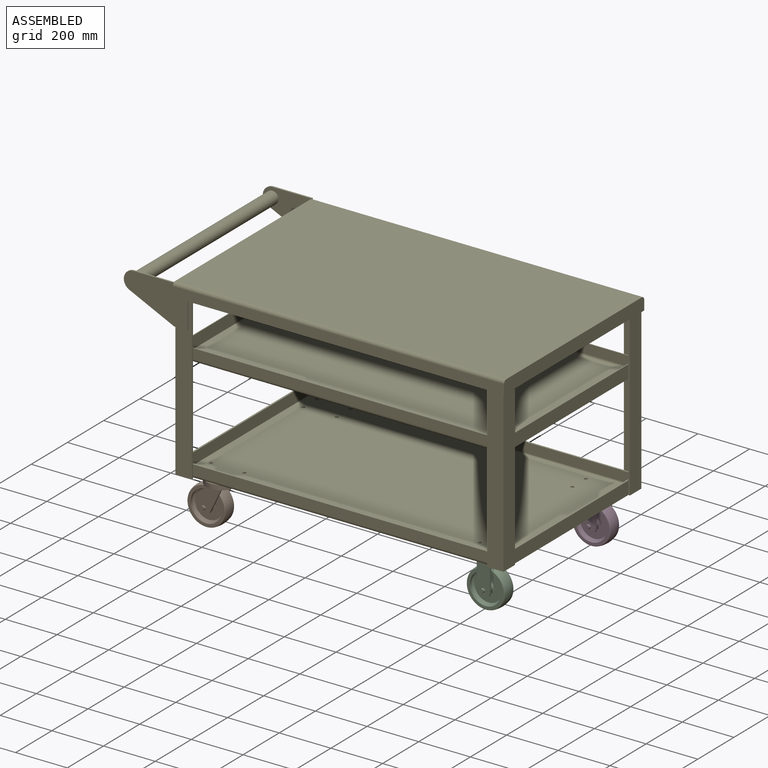
[diagram: assembled view]
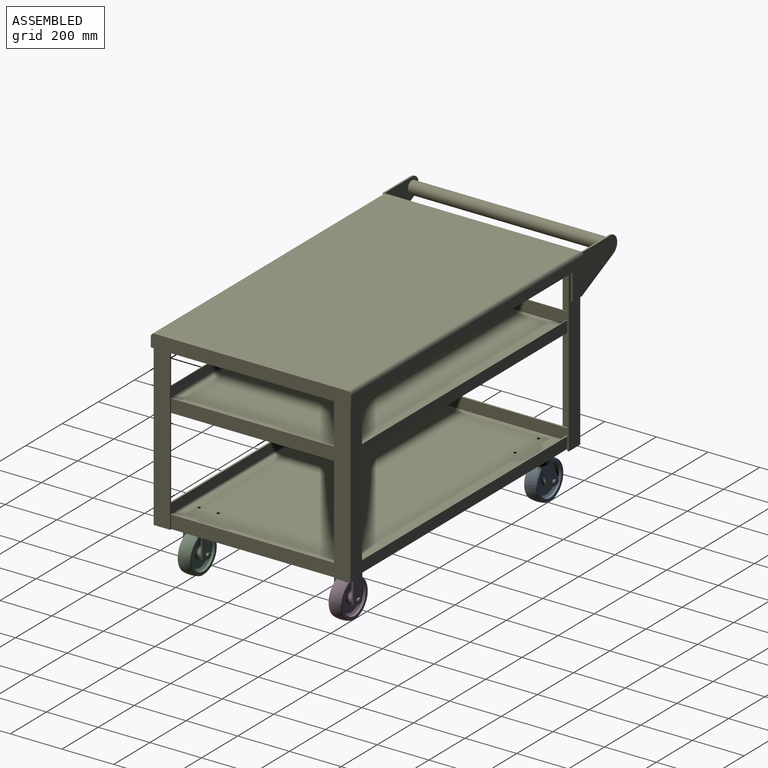
[diagram: assembled view, second angle]
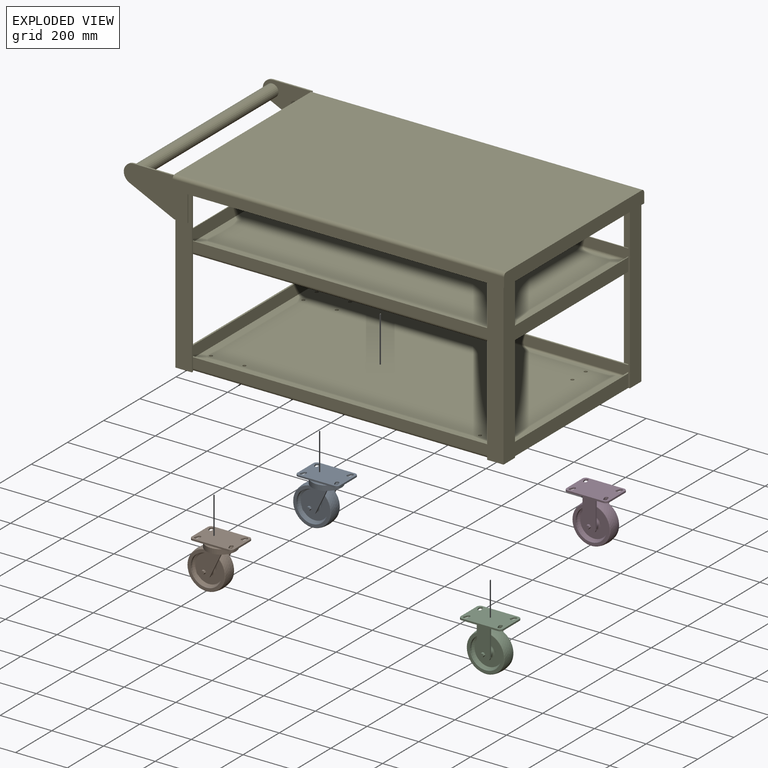
[diagram: exploded view]
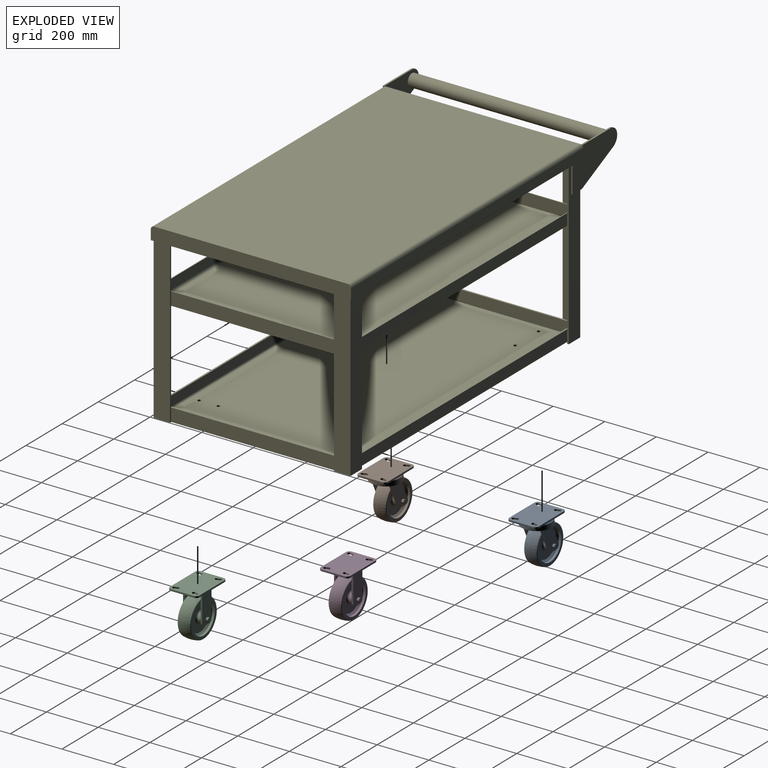
[diagram: exploded view, second angle]
ASSEMBLY  parts=5 mates=4
PART A: 97 faces, bbox 201.9x114.3x193.9 mm
  f0: cylinder r=6.32mm len=44.32mm, axis (0,1,0), area 1761.3mm2, adj f8,f27
  f1: plane 7.62x6.35mm, normal (0.87,0,0.5), area 55.9mm2, adj f2,f6,f7,f8
  f2: plane 7.62x7.33mm, normal (0,0,1), area 55.9mm2, adj f1,f3,f7,f8
  f3: plane 7.62x6.35mm, normal (-0.87,0,0.5), area 55.9mm2, adj f2,f4,f7,f8
  f4: plane 7.62x6.35mm, normal (-0.87,0,-0.5), area 55.9mm2, adj f3,f5,f7,f8
  f5: plane 7.62x7.33mm, normal (0,0,-1), area 55.9mm2, adj f4,f6,f7,f8
  f6: plane 7.62x6.35mm, normal (0.87,0,-0.5), area 55.9mm2, adj f1,f5,f7,f8
  f7: plane 14.66x12.7mm, normal (0,1,0), area 139.7mm2, adj f1,f2,f3,f4,f5,f6
  f8: plane 14.66x12.7mm, normal (0,-1,0), area 14mm2, adj f0,f1,f2,f3,f4,f5,f6
  f9: plane 28.18x6.35mm, normal (0,0,-1), area 179mm2, adj f12,f13,f14,f15
  f10: plane 94.4x45.39mm, normal (0.9,0,-0.43), area 665.1mm2, adj f12,f13,f14,f16
  f11: plane 83.4x40.09mm, normal (-0.9,0,0.43), area 587.6mm2, adj f12,f13,f15,f16
  f12: plane 101.6x97.72mm, normal (0,-1,0), area 5482.5mm2, adj f9,f10,f11,f14,f15,f16,f56,f57
  f13: plane 101.6x97.72mm, normal (0,1,0), area 5482.5mm2, adj f9,f10,f11,f14,f15,f16,f49,f50
  f14: cylinder r=12.7mm len=11.45mm, axis (0,1,0), area 90.5mm2, adj f9,f10,f12,f13
  f15: cylinder r=12.7mm len=18.2mm, axis (0,1,0), area 162.8mm2, adj f9,f11,f12,f13
  f16: plane 114.3x114.3mm, normal (0,0,-1), area 9545mm2, adj f10,f11,f12,f13,f17,f20,f21,f22
  f17: cylinder r=57.15mm len=114.3mm, axis (0,0,-1), area 6749.3mm2, adj f16,f18
  f18: cone r=57.15mm half-angle=45deg, axis (0,0,-1), area 2465.1mm2, adj f17,f88
  f19: plane 28.18x6.35mm, normal (0,0,-1), area 179mm2, adj f22,f23,f24,f25
  f20: plane 94.4x45.39mm, normal (0.9,0,-0.43), area 665.1mm2, adj f16,f22,f23,f24
  f21: plane 83.4x40.09mm, normal (-0.9,0,0.43), area 587.6mm2, adj f16,f22,f23,f25
  f22: plane 101.6x97.72mm, normal (0,1,0), area 5495.5mm2, adj f16,f19,f20,f21,f24,f25,f26
  f23: plane 101.6x97.72mm, normal (0,-1,0), area 5495.5mm2, adj f16,f19,f20,f21,f24,f25,f26
  f24: cylinder r=12.7mm len=11.45mm, axis (0,-1,0), area 90.5mm2, adj f19,f20,f22,f23
  f25: cylinder r=12.7mm len=18.2mm, axis (0,-1,0), area 162.8mm2, adj f19,f21,f22,f23
  f26: cylinder r=6.35mm len=12.7mm, axis (0,-1,0), area 253.4mm2, adj f22,f23
  f27: plane 12.7x12.7mm, normal (0,1,0), area 1mm2, adj f0,f37
  f28: cone r=19.05mm half-angle=45deg, axis (0,-1,0), area 247.7mm2, adj f35,f36
  f29: torus R=71.03mm, axis (0,-1,0), area 1552.2mm2, adj f30,f48
  f30: plane 142.06x142.06mm, normal (0,1,0), area 4417.4mm2, adj f29,f31
  f31: cylinder r=60.32mm len=120.65mm, axis (0,-1,0), area 3524.8mm2, adj f30,f32
  f32: cone r=53.75mm half-angle=45deg, axis (0,1,0), area 3332.7mm2, adj f31,f33
  f33: plane 107.5x107.5mm, normal (0,1,0), area 7049.2mm2, adj f32,f34
  f34: torus R=25.4mm, axis (0,-1,0), area 1338.5mm2, adj f33,f35
  f35: cylinder r=19.05mm len=38.1mm, axis (0,-1,0), area 1527.7mm2, adj f28,f34
  f36: plane 35.05x35.05mm, normal (0,1,0), area 838.3mm2, adj f28,f37
  f37: cylinder r=6.35mm len=35.94mm, axis (0,1,0), area 1434mm2, adj f27,f36
  f38: cone r=19.05mm half-angle=45deg, axis (0,1,0), area 247.7mm2, adj f46,f47
  f39: torus R=71.03mm, axis (0,1,0), area 1552.2mm2, adj f40,f41
  f40: revolved ~152.4x152.4mm, area 11186.1mm2, adj f39,f48
  f41: plane 142.06x142.06mm, normal (0,-1,0), area 4417.4mm2, adj f39,f42
  f42: cylinder r=60.32mm len=120.65mm, axis (0,1,0), area 3524.8mm2, adj f41,f43
  f43: cone r=53.75mm half-angle=45deg, axis (0,-1,0), area 3332.7mm2, adj f42,f44
  f44: plane 107.5x107.5mm, normal (0,-1,0), area 7049.2mm2, adj f43,f45
  f45: torus R=25.4mm, axis (0,1,0), area 1338.5mm2, adj f44,f46
  f46: cylinder r=19.05mm len=38.1mm, axis (0,1,0), area 1527.7mm2, adj f38,f45
  f47: plane 35.05x35.05mm, normal (0,-1,0), area 825.3mm2, adj f38,f49,f50,f51,f52,f53,f54
  f48: revolved ~152.4x152.4mm, area 22372.2mm2, adj f29,f40
  f49: plane 6.35x3.67mm, normal (0.87,0,-0.5), area 5.6mm2, adj f13,f47,f50,f54
  f50: plane 7.33x0.76mm, normal (0,0,-1), area 5.6mm2, adj f13,f47,f49,f51
  f51: plane 6.35x3.67mm, normal (-0.87,0,-0.5), area 5.6mm2, adj f13,f47,f50,f52
  f52: plane 6.35x3.67mm, normal (-0.87,0,0.5), area 5.6mm2, adj f13,f47,f51,f53
  f53: plane 7.33x0.76mm, normal (0,0,1), area 5.6mm2, adj f13,f47,f52,f54
  f54: plane 6.35x3.67mm, normal (0.87,0,0.5), area 5.6mm2, adj f13,f47,f49,f53
  f55: plane 14.66x12.7mm, normal (0,-1,0), area 139.7mm2, adj f56,f57,f58,f59,f60,f61
  f56: plane 8.89x6.35mm, normal (0.87,0,-0.5), area 65.2mm2, adj f12,f55,f57,f61
  f57: plane 8.89x7.33mm, normal (0,0,-1), area 65.2mm2, adj f12,f55,f56,f58
  f58: plane 8.89x6.35mm, normal (-0.87,0,-0.5), area 65.2mm2, adj f12,f55,f57,f59
  f59: plane 8.89x6.35mm, normal (-0.87,0,0.5), area 65.2mm2, adj f12,f55,f58,f60
  f60: plane 8.89x7.33mm, normal (0,0,1), area 65.2mm2, adj f12,f55,f59,f61
  f61: plane 8.89x6.35mm, normal (0.87,0,0.5), area 65.2mm2, adj f12,f55,f56,f60
  f62: plane 165.1x114.3mm, normal (0,0,1), area 17536.1mm2, adj f63,f64,f65,f66,f67,f68,f69,f70
  f63: plane 11.91x6.35mm, normal (0.95,0.32,0), area 79.7mm2, adj f62,f64,f66,f87
  f64: cylinder r=6.55mm len=12.76mm, axis (0,0,1), area 130.6mm2, adj f62,f63,f65,f87
  f65: plane 11.91x6.35mm, normal (-0.95,-0.32,0), area 79.7mm2, adj f62,f64,f66,f87
  f66: cylinder r=6.55mm len=12.76mm, axis (0,0,1), area 130.6mm2, adj f62,f63,f65,f87
  f67: plane 11.91x6.35mm, normal (-0.95,0.32,0), area 79.7mm2, adj f62,f68,f70,f87
  f68: cylinder r=6.55mm len=12.76mm, axis (0,0,1), area 130.6mm2, adj f62,f67,f69,f87
  f69: plane 11.91x6.35mm, normal (0.95,-0.32,0), area 79.7mm2, adj f62,f68,f70,f87
  f70: cylinder r=6.55mm len=12.76mm, axis (0,0,1), area 130.6mm2, adj f62,f67,f69,f87
  f71: plane 11.91x6.35mm, normal (-0.95,0.32,0), area 79.7mm2, adj f62,f72,f74,f87
  f72: cylinder r=6.55mm len=12.76mm, axis (0,0,1), area 130.6mm2, adj f62,f71,f73,f87
  f73: plane 11.91x6.35mm, normal (0.95,-0.32,0), area 79.7mm2, adj f62,f72,f74,f87
  f74: cylinder r=6.55mm len=12.76mm, axis (0,0,1), area 130.6mm2, adj f62,f71,f73,f87
  f75: plane 11.91x6.35mm, normal (0.95,0.32,0), area 79.7mm2, adj f62,f76,f78,f87
  f76: cylinder r=6.55mm len=12.76mm, axis (0,0,1), area 130.6mm2, adj f62,f75,f77,f87
  f77: plane 11.91x6.35mm, normal (-0.95,-0.32,0), area 79.7mm2, adj f62,f76,f78,f87
  f78: cylinder r=6.55mm len=12.76mm, axis (0,0,1), area 130.6mm2, adj f62,f75,f77,f87
  f79: cylinder r=12.7mm len=12.7mm, axis (0,0,1), area 126.7mm2, adj f62,f80,f86,f87
  f80: plane 139.7x6.35mm, normal (0,-1,0), area 887.1mm2, adj f62,f79,f81,f87
  f81: cylinder r=12.7mm len=12.7mm, axis (0,0,-1), area 126.7mm2, adj f62,f80,f82,f87
  f82: plane 88.9x6.35mm, normal (1,0,0), area 564.5mm2, adj f62,f81,f83,f87
  f83: cylinder r=12.7mm len=12.7mm, axis (0,0,-1), area 126.7mm2, adj f62,f82,f84,f87
  f84: plane 139.7x6.35mm, normal (0,1,0), area 887.1mm2, adj f62,f83,f85,f87
  f85: cylinder r=12.7mm len=12.7mm, axis (0,0,1), area 126.7mm2, adj f62,f84,f86,f87
  f86: plane 88.9x6.35mm, normal (-1,0,0), area 564.5mm2, adj f62,f79,f85,f87
  f87: plane 165.1x114.3mm, normal (0,0,-1), area 9018.4mm2, adj f63,f64,f65,f66,f67,f68,f69,f70
  f88: cylinder r=52.07mm len=104.14mm, axis (0,0,-1), area 498.6mm2, adj f18,f87
  f89: plane 76.2x76.2mm, normal (0,0,1), area 1393.4mm2, adj f91,f96
  f90: plane 15.24x15.24mm, normal (0,0,1), area 182.4mm2, adj f94
  f91: cylinder r=31.75mm len=63.5mm, axis (0,0,1), area 3547mm2, adj f89,f93
  f92: cylinder r=12.7mm len=25.4mm, axis (0,0,1), area 1013.4mm2, adj f93,f94
  f93: plane 63.5x63.5mm, normal (0,0,1), area 2660.2mm2, adj f91,f92
  f94: cone r=12.7mm half-angle=45deg, axis (0,0,-1), area 458.6mm2, adj f90,f92
  f95: plane 76.2x76.2mm, normal (0,0,-1), area 4560.4mm2, adj f96
  f96: cylinder r=38.1mm len=76.2mm, axis (0,0,-1), area 4560.4mm2, adj f89,f95
PART B: same geometry as A
PART C: 85 faces, bbox 165.1x114.3x193.9 mm
  f0: cylinder r=6.32mm len=59.31mm, axis (0,1,0), area 2356.9mm2, adj f8,f30
  f1: plane 7.62x6.35mm, normal (0.87,0,0.5), area 55.9mm2, adj f2,f6,f7,f8
  f2: plane 7.62x7.33mm, normal (0,0,1), area 55.9mm2, adj f1,f3,f7,f8
  f3: plane 7.62x6.35mm, normal (-0.87,0,0.5), area 55.9mm2, adj f2,f4,f7,f8
  f4: plane 7.62x6.35mm, normal (-0.87,0,-0.5), area 55.9mm2, adj f3,f5,f7,f8
  f5: plane 7.62x7.33mm, normal (0,0,-1), area 55.9mm2, adj f4,f6,f7,f8
  f6: plane 7.62x6.35mm, normal (0.87,0,-0.5), area 55.9mm2, adj f1,f5,f7,f8
  f7: plane 14.66x12.7mm, normal (0,1,0), area 139.7mm2, adj f1,f2,f3,f4,f5,f6
  f8: plane 14.66x12.7mm, normal (0,-1,0), area 14mm2, adj f0,f1,f2,f3,f4,f5,f6
  f9: revolved ~152.4x152.4mm, area 22372.2mm2, adj f17,f28
  f10: plane 35.05x35.05mm, normal (0,-1,0), area 825.3mm2, adj f19,f31,f32,f33,f34,f35,f36
  f11: cylinder r=19.05mm len=38.1mm, axis (0,1,0), area 1527.7mm2, adj f12,f19
  f12: torus R=25.4mm, axis (0,1,0), area 1338.5mm2, adj f11,f13
  f13: plane 107.5x107.5mm, normal (0,-1,0), area 7049.2mm2, adj f12,f14
  f14: cone r=53.75mm half-angle=45deg, axis (0,-1,0), area 3332.7mm2, adj f13,f15
  f15: cylinder r=60.32mm len=120.65mm, axis (0,1,0), area 3524.8mm2, adj f14,f16
  f16: plane 142.06x142.06mm, normal (0,-1,0), area 4417.4mm2, adj f15,f18
  f17: revolved ~152.4x152.4mm, area 11186.1mm2, adj f9,f18
  f18: torus R=71.03mm, axis (0,1,0), area 1552.2mm2, adj f16,f17
  f19: cone r=19.05mm half-angle=45deg, axis (0,1,0), area 247.7mm2, adj f10,f11
  f20: cylinder r=6.35mm len=50.93mm, axis (0,1,0), area 2031.9mm2, adj f21,f30
  f21: plane 35.05x35.05mm, normal (0,1,0), area 838.3mm2, adj f20,f29
  f22: cylinder r=19.05mm len=38.1mm, axis (0,-1,0), area 1527.7mm2, adj f23,f29
  f23: torus R=25.4mm, axis (0,-1,0), area 1338.5mm2, adj f22,f24
  f24: plane 107.5x107.5mm, normal (0,1,0), area 7049.2mm2, adj f23,f25
  f25: cone r=53.75mm half-angle=45deg, axis (0,1,0), area 3332.7mm2, adj f24,f26
  f26: cylinder r=60.32mm len=120.65mm, axis (0,-1,0), area 3524.8mm2, adj f25,f27
  f27: plane 142.06x142.06mm, normal (0,1,0), area 4417.4mm2, adj f26,f28
  f28: torus R=71.03mm, axis (0,-1,0), area 1552.2mm2, adj f9,f27
  f29: cone r=19.05mm half-angle=45deg, axis (0,-1,0), area 247.7mm2, adj f21,f22
  f30: plane 12.7x12.7mm, normal (0,1,0), area 1mm2, adj f0,f20
  f31: plane 6.35x3.67mm, normal (0.87,0,-0.5), area 5.6mm2, adj f10,f32,f36,f41
  f32: plane 7.33x0.76mm, normal (0,0,-1), area 5.6mm2, adj f10,f31,f33,f41
  f33: plane 6.35x3.67mm, normal (-0.87,0,-0.5), area 5.6mm2, adj f10,f32,f34,f41
  f34: plane 6.35x3.67mm, normal (-0.87,0,0.5), area 5.6mm2, adj f10,f33,f35,f41
  f35: plane 7.33x0.76mm, normal (0,0,1), area 5.6mm2, adj f10,f34,f36,f41
  f36: plane 6.35x3.67mm, normal (0.87,0,0.5), area 5.6mm2, adj f10,f31,f35,f41
  f37: plane 25.4x6.35mm, normal (0,0,-1), area 161.3mm2, adj f40,f41,f42,f43
  f38: plane 114.3x6.35mm, normal (1,0,0), area 725.8mm2, adj f40,f41,f42,f44
  f39: plane 114.3x6.35mm, normal (-1,0,0), area 725.8mm2, adj f40,f41,f43,f44
  f40: plane 127x50.8mm, normal (0,-1,0), area 6242.7mm2, adj f37,f38,f39,f42,f43,f44,f79,f80
  f41: plane 127x50.8mm, normal (0,1,0), area 6242.7mm2, adj f31,f32,f33,f34,f35,f36,f37,f38
  f42: cylinder r=12.7mm len=12.7mm, axis (0,1,0), area 126.7mm2, adj f37,f38,f40,f41
  f43: cylinder r=12.7mm len=12.7mm, axis (0,1,0), area 126.7mm2, adj f37,f39,f40,f41
  f44: plane 165.1x114.3mm, normal (0,0,-1), area 16891mm2, adj f38,f39,f40,f41,f45,f46,f48,f49
  f45: plane 88.9x6.35mm, normal (-1,0,0), area 564.5mm2, adj f44,f47,f58,f76
  f46: plane 88.9x6.35mm, normal (1,0,0), area 564.5mm2, adj f44,f47,f57,f75
  f47: plane 165.1x114.3mm, normal (0,0,1), area 17536.1mm2, adj f45,f46,f48,f49,f50,f51,f52,f53
  f48: plane 139.7x6.35mm, normal (0,-1,0), area 887.1mm2, adj f44,f47,f57,f58
  f49: cylinder r=6.55mm len=12.76mm, axis (0,0,1), area 130.6mm2, adj f44,f47,f50,f52
  f50: plane 11.91x6.35mm, normal (-0.95,0.32,0), area 79.7mm2, adj f44,f47,f49,f51
  f51: cylinder r=6.55mm len=12.76mm, axis (0,0,1), area 130.6mm2, adj f44,f47,f50,f52
  f52: plane 11.91x6.35mm, normal (0.95,-0.32,0), area 79.7mm2, adj f44,f47,f49,f51
  f53: cylinder r=6.55mm len=12.76mm, axis (0,0,1), area 130.6mm2, adj f44,f47,f54,f56
  f54: plane 11.91x6.35mm, normal (0.95,0.32,0), area 79.7mm2, adj f44,f47,f53,f55
  f55: cylinder r=6.55mm len=12.76mm, axis (0,0,1), area 130.6mm2, adj f44,f47,f54,f56
  f56: plane 11.91x6.35mm, normal (-0.95,-0.32,0), area 79.7mm2, adj f44,f47,f53,f55
  f57: cylinder r=12.7mm len=12.7mm, axis (0,0,-1), area 126.7mm2, adj f44,f46,f47,f48
  f58: cylinder r=12.7mm len=12.7mm, axis (0,0,1), area 126.7mm2, adj f44,f45,f47,f48
  f59: plane 25.4x6.35mm, normal (0,0,-1), area 161.3mm2, adj f62,f63,f64,f65
  f60: plane 114.3x6.35mm, normal (1,0,0), area 725.8mm2, adj f44,f62,f63,f64
  f61: plane 114.3x6.35mm, normal (-1,0,0), area 725.8mm2, adj f44,f62,f63,f65
  f62: plane 127x50.8mm, normal (0,1,0), area 6255.7mm2, adj f44,f59,f60,f61,f64,f65,f77
  f63: plane 127x50.8mm, normal (0,-1,0), area 6255.7mm2, adj f44,f59,f60,f61,f64,f65,f77
  f64: cylinder r=12.7mm len=12.7mm, axis (0,-1,0), area 126.7mm2, adj f59,f60,f62,f63
  f65: cylinder r=12.7mm len=12.7mm, axis (0,-1,0), area 126.7mm2, adj f59,f61,f62,f63
  f66: plane 139.7x6.35mm, normal (0,1,0), area 887.1mm2, adj f44,f47,f75,f76
  f67: cylinder r=6.55mm len=12.76mm, axis (0,0,1), area 130.6mm2, adj f44,f47,f68,f70
  f68: plane 11.91x6.35mm, normal (-0.95,-0.32,0), area 79.7mm2, adj f44,f47,f67,f69
  f69: cylinder r=6.55mm len=12.76mm, axis (0,0,1), area 130.6mm2, adj f44,f47,f68,f70
  f70: plane 11.91x6.35mm, normal (0.95,0.32,0), area 79.7mm2, adj f44,f47,f67,f69
  f71: cylinder r=6.55mm len=12.76mm, axis (0,0,1), area 130.6mm2, adj f44,f47,f72,f74
  f72: plane 11.91x6.35mm, normal (0.95,-0.32,0), area 79.7mm2, adj f44,f47,f71,f73
  f73: cylinder r=6.55mm len=12.76mm, axis (0,0,1), area 130.6mm2, adj f44,f47,f72,f74
  f74: plane 11.91x6.35mm, normal (-0.95,0.32,0), area 79.7mm2, adj f44,f47,f71,f73
  f75: cylinder r=12.7mm len=12.7mm, axis (0,0,-1), area 126.7mm2, adj f44,f46,f47,f66
  f76: cylinder r=12.7mm len=12.7mm, axis (0,0,1), area 126.7mm2, adj f44,f45,f47,f66
  f77: cylinder r=6.35mm len=12.7mm, axis (0,-1,0), area 253.4mm2, adj f62,f63
  f78: plane 14.66x12.7mm, normal (0,-1,0), area 139.7mm2, adj f79,f80,f81,f82,f83,f84
  f79: plane 8.89x6.35mm, normal (0.87,0,-0.5), area 65.2mm2, adj f40,f78,f80,f84
  f80: plane 8.89x7.33mm, normal (0,0,-1), area 65.2mm2, adj f40,f78,f79,f81
  f81: plane 8.89x6.35mm, normal (-0.87,0,-0.5), area 65.2mm2, adj f40,f78,f80,f82
  f82: plane 8.89x6.35mm, normal (-0.87,0,0.5), area 65.2mm2, adj f40,f78,f81,f83
  f83: plane 8.89x7.33mm, normal (0,0,1), area 65.2mm2, adj f40,f78,f82,f84
  f84: plane 8.89x6.35mm, normal (0.87,0,0.5), area 65.2mm2, adj f40,f78,f79,f83
PART D: same geometry as C
PART E: 121 faces, bbox 1471.9x774.7x673.1 mm
  f0: plane 1270x762mm, normal (0,0,-1), area 911197.2mm2, adj f31,f32,f34,f35,f42,f43,f46,f48
  f1: plane 1244.6x723.9mm, normal (0,0,1), area 898939.1mm2, adj f38,f39,f40,f41,f105,f106,f107,f108
  f2: plane 1225.55x774.7mm, normal (0,0,-1), area 20403.2mm2, adj f51,f53,f55,f58,f59,f60,f65,f70
  f3: plane 762x50.8mm, normal (-1,0,0), area 38702.6mm2, adj f4,f61,f62,f63,f86,f101
  f4: plane 762x6.35mm, normal (0,0,-1), area 4838.7mm2, adj f3,f52,f64,f81,f86,f101
  f5: plane 1143x38.1mm, normal (0,1,0), area 43548.3mm2, adj f9,f11,f77,f82
  f6: plane 1143x38.1mm, normal (0,-1,0), area 43548.3mm2, adj f9,f12,f66,f71
  f7: plane 635x50.8mm, normal (-1,0,0), area 32258mm2, adj f9,f10,f67,f84
  f8: plane 635x50.8mm, normal (1,0,0), area 32258mm2, adj f9,f10,f73,f80
  f9: plane 1257.3x749.3mm, normal (0,0,1), area 13663.6mm2, adj f5,f6,f7,f8,f13,f14,f15,f17
  f10: plane 1257.3x723.9mm, normal (0,0,-1), area 910159.5mm2, adj f7,f8,f11,f12,f26,f27,f44,f45
  f11: cylinder r=12.7mm len=1257.3mm, axis (1,0,0), area 25082mm2, adj f5,f10,f22,f24,f44,f45
  f12: cylinder r=12.7mm len=1257.3mm, axis (-1,0,0), area 25082mm2, adj f6,f10,f26,f27,f28,f47
  f13: plane 1250.47x38.1mm, normal (0,-1,0), area 47642.8mm2, adj f9,f15,f17,f18
  f14: plane 1250.47x38.1mm, normal (0,1,0), area 47642.8mm2, adj f9,f15,f17,f19
  f15: plane 742.47x47.38mm, normal (1,0,0), area 35143.9mm2, adj f9,f13,f14,f16,f18,f19
  f16: plane 1250.47x723.9mm, normal (0,0,1), area 905213.4mm2, adj f15,f17,f18,f19
  f17: plane 742.47x47.38mm, normal (-1,0,0), area 35143.9mm2, adj f9,f13,f14,f16,f18,f19
  f18: cylinder r=9.28mm len=1250.47mm, axis (1,0,0), area 18235.3mm2, adj f13,f15,f16,f17
  f19: cylinder r=9.28mm len=1250.47mm, axis (-1,0,0), area 18235.3mm2, adj f14,f15,f16,f17
  f20: plane 209.55x57.15mm, normal (-1,0,0), area 11975.8mm2, adj f9,f56,f79,f80
  f21: plane 209.55x57.15mm, normal (1,0,0), area 11975.8mm2, adj f9,f23,f56,f84
  f22: plane 368.3x57.15mm, normal (0,-1,0), area 21048.3mm2, adj f11,f33,f45,f82
  f23: plane 209.55x57.15mm, normal (0,-1,0), area 11975.8mm2, adj f9,f21,f56,f82
  f24: plane 368.3x57.15mm, normal (0,-1,0), area 21048.3mm2, adj f11,f33,f44,f77
  f25: plane 209.55x57.15mm, normal (0,1,0), area 11975.8mm2, adj f9,f56,f66,f69
  f26: plane 368.3x57.15mm, normal (-1,0,0), area 20357.2mm2, adj f10,f12,f28,f33,f73
  f27: plane 368.3x57.15mm, normal (1,0,0), area 20357.2mm2, adj f10,f12,f33,f47,f67
  f28: plane 368.3x57.15mm, normal (0,1,0), area 21048.3mm2, adj f12,f26,f33,f71
  f29: plane 1143x38.1mm, normal (0,1,0), area 43548.3mm2, adj f33,f34,f77,f82
  f30: plane 1143x38.1mm, normal (0,-1,0), area 43548.3mm2, adj f33,f35,f66,f71
  f31: plane 635x50.8mm, normal (-1,0,0), area 32258mm2, adj f0,f33,f67,f84
  f32: plane 635x50.8mm, normal (1,0,0), area 32258mm2, adj f0,f33,f73,f80
  f33: plane 1257.3x749.3mm, normal (0,0,1), area 25322.5mm2, adj f22,f24,f26,f27,f28,f29,f30,f31
  f34: cylinder r=12.7mm len=1257.3mm, axis (1,0,0), area 25082mm2, adj f0,f29,f42,f43,f46,f85
  f35: cylinder r=12.7mm len=1257.3mm, axis (-1,0,0), area 25082mm2, adj f0,f30,f48,f50,f68,f74
  f36: plane 1244.6x38.1mm, normal (0,-1,0), area 47419.3mm2, adj f33,f38,f39,f40
  f37: plane 1244.6x38.1mm, normal (0,1,0), area 47419.3mm2, adj f33,f38,f39,f41
  f38: plane 736.6x44.45mm, normal (1,0,0), area 32724.6mm2, adj f1,f33,f36,f37,f40,f41
  f39: plane 736.6x44.45mm, normal (-1,0,0), area 32724.6mm2, adj f1,f33,f36,f37,f40,f41
  f40: cylinder r=6.35mm len=1244.6mm, axis (1,0,0), area 12414.3mm2, adj f1,f36,f38,f39
  f41: cylinder r=6.35mm len=1244.6mm, axis (-1,0,0), area 12414.3mm2, adj f1,f37,f38,f39
  f42: plane 57.15x12.7mm, normal (0,-1,0), area 725.8mm2, adj f0,f34,f43,f77
  f43: plane 12.7x12.7mm, normal (-1,0,0), area 34.6mm2, adj f0,f34,f42
  f44: plane 368.3x57.15mm, normal (-1,0,0), area 20357.2mm2, adj f10,f11,f24,f33,f80
  f45: plane 368.3x57.15mm, normal (1,0,0), area 20357.2mm2, adj f10,f11,f22,f33,f84
  f46: plane 57.15x12.7mm, normal (0,-1,0), area 725.8mm2, adj f0,f34,f82,f85
  f47: plane 368.3x57.15mm, normal (0,1,0), area 21048.3mm2, adj f12,f27,f33,f66
  f48: plane 12.7x12.7mm, normal (1,0,0), area 34.6mm2, adj f0,f35,f68
  f49: plane 209.55x57.15mm, normal (-1,0,0), area 11975.8mm2, adj f9,f56,f73,f75
  f50: plane 57.15x12.7mm, normal (0,1,0), area 725.8mm2, adj f0,f35,f71,f74
  f51: plane 1143x38.1mm, normal (0,-1,0), area 43548.3mm2, adj f2,f54,f77,f82
  f52: plane 635x44.45mm, normal (1,0,0), area 28225.7mm2, adj f4,f56,f67,f84
  f53: plane 635x44.45mm, normal (-1,0,0), area 28225.7mm2, adj f2,f56,f73,f80
  f54: cylinder r=6.35mm len=1143mm, axis (-1,0,0), area 11400.9mm2, adj f51,f56,f77,f82
  f55: plane 1143x38.1mm, normal (0,1,0), area 43548.3mm2, adj f2,f57,f66,f71
  f56: plane 1270x749.3mm, normal (0,0,-1), area 950159.4mm2, adj f20,f21,f23,f25,f49,f52,f53,f54
  f57: cylinder r=6.35mm len=1143mm, axis (1,0,0), area 11400.9mm2, adj f55,f56,f66,f71
  f58: plane 1282.71x38.11mm, normal (0,-1,0), area 48870.9mm2, adj f2,f59,f62,f93
  f59: plane 774.7x50.8mm, normal (1,0,0), area 39285.5mm2, adj f2,f58,f60,f61,f62,f63
  f60: plane 1282.71x38.11mm, normal (0,1,0), area 48870.9mm2, adj f2,f59,f63,f100
  f61: plane 1282.7x749.3mm, normal (0,0,1), area 961127.1mm2, adj f3,f59,f62,f63
  f62: cylinder r=12.7mm len=1282.7mm, axis (1,0,0), area 25588.7mm2, adj f3,f58,f59,f61,f89,f93
  f63: cylinder r=12.7mm len=1282.7mm, axis (-1,0,0), area 25588.7mm2, adj f3,f59,f60,f61,f96,f100
  f64: plane 622.3x63.5mm, normal (-1,0,0), area 39516.1mm2, adj f0,f4,f65,f67,f86
  f65: plane 622.3x63.5mm, normal (0,-1,0), area 34354.8mm2, adj f0,f2,f64,f66,f87,f88
  f66: plane 666.75x6.35mm, normal (1,0,0), area 4225.2mm2, adj f0,f6,f25,f30,f47,f55,f57,f65
  f67: plane 666.75x6.35mm, normal (0,1,0), area 4233.9mm2, adj f0,f7,f27,f31,f52,f56,f64,f69
  f68: plane 57.15x12.7mm, normal (0,1,0), area 725.8mm2, adj f0,f35,f48,f66
  f69: plane 209.55x57.15mm, normal (1,0,0), area 11975.8mm2, adj f9,f25,f56,f67
  f70: plane 622.3x63.5mm, normal (1,0,0), area 39516.1mm2, adj f0,f2,f72,f73
  f71: plane 666.75x6.35mm, normal (-1,0,0), area 4225.2mm2, adj f0,f6,f28,f30,f50,f55,f57,f72
  f72: plane 622.3x63.5mm, normal (0,-1,0), area 39516.1mm2, adj f0,f2,f70,f71
  f73: plane 666.75x6.35mm, normal (0,1,0), area 4233.9mm2, adj f0,f8,f26,f32,f49,f53,f56,f70
  f74: plane 12.7x12.7mm, normal (-1,0,0), area 34.6mm2, adj f0,f35,f50
  f75: plane 209.55x57.15mm, normal (0,1,0), area 11975.8mm2, adj f9,f49,f56,f71
  f76: plane 622.3x63.5mm, normal (0,1,0), area 39516.1mm2, adj f0,f2,f77,f78
  f77: plane 666.75x6.35mm, normal (-1,0,0), area 4225.2mm2, adj f0,f5,f24,f29,f42,f51,f54,f76
  f78: plane 622.3x63.5mm, normal (1,0,0), area 39516mm2, adj f0,f2,f76,f80
  f79: plane 209.55x57.15mm, normal (0,-1,0), area 11975.8mm2, adj f9,f20,f56,f77
  f80: plane 666.75x6.35mm, normal (0,-1,0), area 4233.9mm2, adj f0,f8,f20,f32,f44,f53,f56,f78
  f81: plane 622.3x63.5mm, normal (-1,0,0), area 39516mm2, adj f0,f4,f83,f84,f101
  f82: plane 666.75x6.35mm, normal (1,0,0), area 4225.2mm2, adj f0,f5,f22,f23,f29,f46,f51,f54
  f83: plane 622.3x63.5mm, normal (0,1,0), area 34354.8mm2, adj f0,f2,f81,f82,f94,f95
  f84: plane 666.75x6.35mm, normal (0,-1,0), area 4233.9mm2, adj f0,f7,f21,f31,f45,f52,f56,f81
  f85: plane 12.7x12.7mm, normal (1,0,0), area 34.6mm2, adj f0,f34,f46
  f86: plane 195.58x152.4mm, normal (0,1,0), area 18252.1mm2, adj f3,f4,f64,f89,f90,f91,f92,f102
  f87: plane 50.8x6.35mm, normal (0,0,-1), area 322.5mm2, adj f65,f88,f92,f93
  f88: plane 101.6x6.35mm, normal (1,0,0), area 644.9mm2, adj f2,f65,f87,f93
  f89: plane 12.45x6.35mm, normal (1,0,0), area 31.1mm2, adj f62,f86,f90,f93
  f90: plane 152.4x6.35mm, normal (0,0,1), area 967.4mm2, adj f86,f89,f91,f93
  f91: cylinder r=36.83mm len=70.14mm, axis (0,1,0), area 631.4mm2, adj f86,f90,f92,f93
  f92: plane 174.46x82.26mm, normal (-0.43,0,-0.9), area 1224.3mm2, adj f86,f87,f91,f93
  f93: plane 246.39x152.41mm, normal (0,-1,0), area 23413.4mm2, adj f58,f62,f87,f88,f89,f90,f91,f92
  f94: plane 50.8x6.35mm, normal (0,0,-1), area 322.5mm2, adj f83,f95,f99,f100
  f95: plane 101.6x6.35mm, normal (1,0,0), area 644.9mm2, adj f2,f83,f94,f100
  f96: plane 12.45x6.35mm, normal (1,0,0), area 31.1mm2, adj f63,f97,f100,f101
  f97: plane 152.4x6.35mm, normal (0,0,1), area 967.4mm2, adj f96,f98,f100,f101
  f98: cylinder r=36.83mm len=70.14mm, axis (0,-1,0), area 631.4mm2, adj f97,f99,f100,f101
  f99: plane 174.46x82.26mm, normal (-0.43,0,-0.9), area 1224.3mm2, adj f94,f98,f100,f101
  f100: plane 246.39x152.41mm, normal (0,1,0), area 23413.5mm2, adj f60,f63,f94,f95,f96,f97,f98,f99
  f101: plane 195.58x152.4mm, normal (0,-1,0), area 18252.1mm2, adj f3,f4,f81,f96,f97,f98,f99,f102
  f102: cylinder r=24.13mm len=762mm, axis (0,1,0), area 115529.3mm2, adj f86,f101
  f103: plane 48.27x48.27mm, normal (0,1,0), area 1829mm2, adj f100
  f104: plane 48.27x48.27mm, normal (0,-1,0), area 1829.1mm2, adj f93
  f105: cylinder r=6.35mm len=12.7mm, axis (0,0,-1), area 253.4mm2, adj f0,f1
  f106: cylinder r=6.35mm len=12.7mm, axis (0,0,-1), area 253.4mm2, adj f0,f1
  f107: cylinder r=6.35mm len=12.7mm, axis (0,0,-1), area 253.4mm2, adj f0,f1
  f108: cylinder r=6.35mm len=12.7mm, axis (0,0,-1), area 253.4mm2, adj f0,f1
  f109: cylinder r=6.35mm len=12.7mm, axis (0,0,-1), area 253.4mm2, adj f0,f1
  f110: cylinder r=6.35mm len=12.7mm, axis (0,0,-1), area 253.4mm2, adj f0,f1
  f111: cylinder r=6.35mm len=12.7mm, axis (0,0,-1), area 253.4mm2, adj f0,f1
  f112: cylinder r=6.35mm len=12.7mm, axis (0,0,-1), area 253.4mm2, adj f0,f1
  f113: cylinder r=6.35mm len=12.7mm, axis (0,0,-1), area 253.4mm2, adj f0,f1
  f114: cylinder r=6.35mm len=12.7mm, axis (0,0,-1), area 253.4mm2, adj f0,f1
  f115: cylinder r=6.35mm len=12.7mm, axis (0,0,-1), area 253.4mm2, adj f0,f1
  f116: cylinder r=6.35mm len=12.7mm, axis (0,0,-1), area 253.4mm2, adj f0,f1
  f117: cylinder r=6.35mm len=12.7mm, axis (0,0,-1), area 253.4mm2, adj f0,f1
  f118: cylinder r=6.35mm len=12.7mm, axis (0,0,-1), area 253.4mm2, adj f0,f1
  f119: cylinder r=6.35mm len=12.7mm, axis (0,0,-1), area 253.4mm2, adj f0,f1
  f120: cylinder r=6.35mm len=12.7mm, axis (0,0,-1), area 253.4mm2, adj f0,f1
PLACE A t=(-560.39,292.1,-114.3)mm
PLACE B t=(-560.39,-292.1,-114.3)mm
PLACE C t=(520.7,-292.1,-114.3)mm
PLACE D t=(520.7,292.1,-114.3)mm
PLACE E at identity fixed
MATE fastened B.f17 <-> E.f0  axis (0,0,1) through (-520.7,-292.1,0)mm
MATE fastened E.f0 <-> A.f17  axis (0,0,1) through (-520.7,292.1,0)mm
MATE fastened D.f47 <-> E.f0  axis (0,0,1) through (520.7,292.1,0)mm
MATE fastened C.f47 <-> E.f0  axis (0,0,1) through (520.7,-292.1,0)mm
